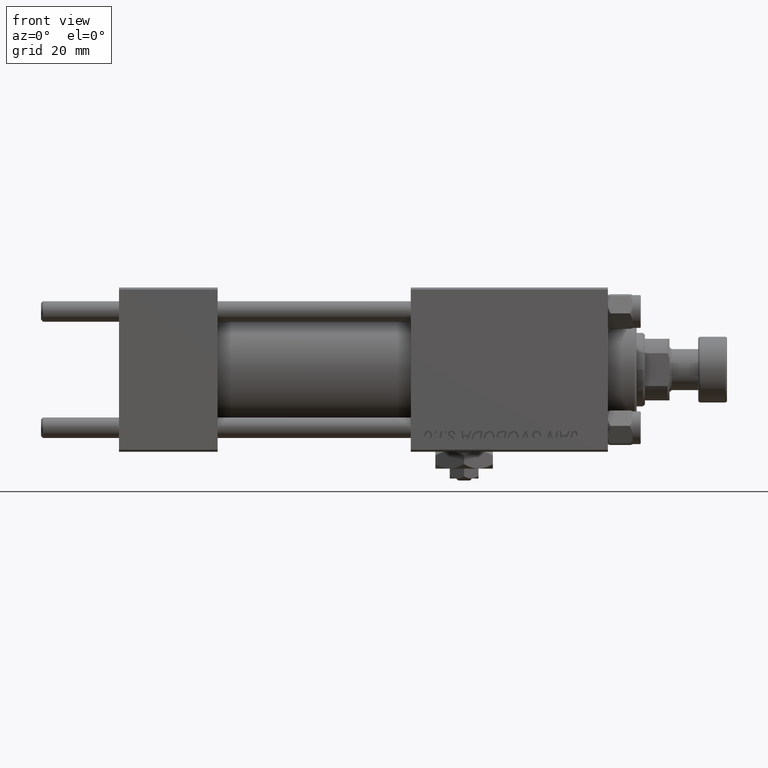
[diagram: clean part render]
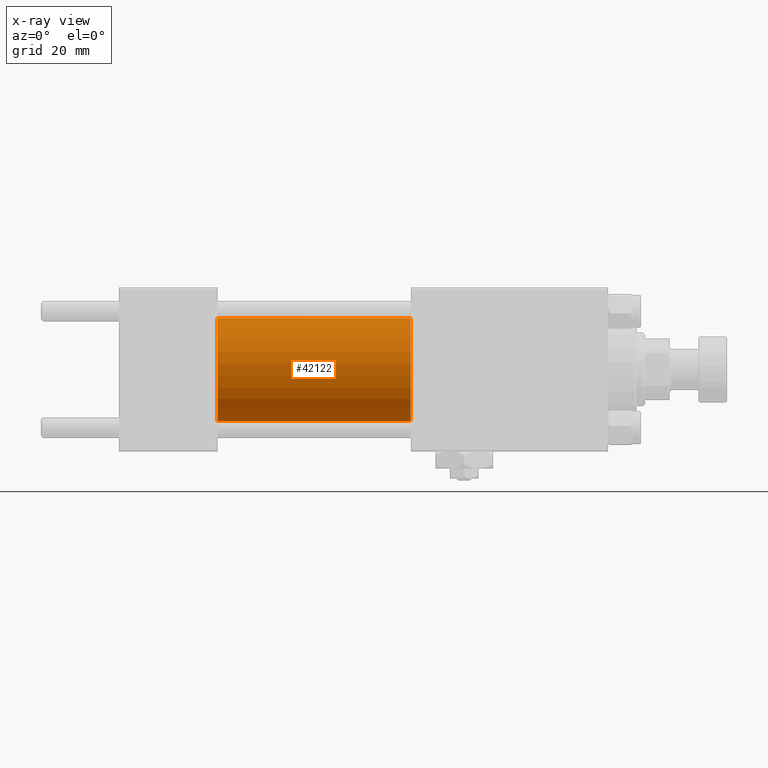
[diagram: x-ray — body ghosted, one internal face saturated and labeled with its STEP entity id]
A machine part, front view, then the same camera in x-ray: the body is ghosted and one INTERNAL B-rep face — a face not visible from any outside direction — is saturated and labeled: STEP entity #42122.
In plain terms, the highlighted cylindrical surface (partial cylindrical patch) has radius 12.5 mm, axis along (-1, -0, -0).
Its self-contained STEP definition (entity closure, byte-faithful):
#26 = CARTESIAN_POINT ( 'NONE',  ( 24.00000000000000000, 0.000000000000000000, 12.49999999999999645 ) ) ;
#1106 = DIRECTION ( 'NONE',  ( 1.000000000000000000, 0.000000000000000000, 0.000000000000000000 ) ) ;
#1792 = VECTOR ( 'NONE', #37210, 1000.000000000000000 ) ;
#2513 = EDGE_CURVE ( 'NONE', #13904, #45645, #7411, .T. ) ;
#5049 = CARTESIAN_POINT ( 'NONE',  ( 71.00000000000001421, 0.000000000000000000, 0.000000000000000000 ) ) ;
#7411 = CIRCLE ( 'NONE', #36787, 12.49999999999999645 ) ;
#10118 = EDGE_CURVE ( 'NONE', #13904, #35926, #48041, .T. ) ;
#13031 = EDGE_CURVE ( 'NONE', #35926, #36608, #48209, .T. ) ;
#13904 = VERTEX_POINT ( 'NONE', #26538 ) ;
#14065 = DIRECTION ( 'NONE',  ( -1.000000000000000000, -0.000000000000000000, -0.000000000000000000 ) ) ;
#16433 = VECTOR ( 'NONE', #14065, 1000.000000000000000 ) ;
#16663 = FACE_OUTER_BOUND ( 'NONE', #22492, .T. ) ;
#17112 = DIRECTION ( 'NONE',  ( 0.000000000000000000, 0.000000000000000000, -1.000000000000000000 ) ) ;
#22490 = CARTESIAN_POINT ( 'NONE',  ( 71.00000000000001421, 1.530808498934191127E-15, -12.49999999999999645 ) ) ;
#22492 = EDGE_LOOP ( 'NONE', ( #36535, #41019, #49497, #33346 ) ) ;
#22818 = EDGE_CURVE ( 'NONE', #45645, #36608, #50153, .T. ) ;
#26015 = DIRECTION ( 'NONE',  ( 0.000000000000000000, 0.000000000000000000, -1.000000000000000000 ) ) ;
#26538 = CARTESIAN_POINT ( 'NONE',  ( 71.00000000000001421, 0.000000000000000000, 12.49999999999999645 ) ) ;
#32984 = CARTESIAN_POINT ( 'NONE',  ( 71.00000000000001421, 0.000000000000000000, 0.000000000000000000 ) ) ;
#33230 = CYLINDRICAL_SURFACE ( 'NONE', #45376, 12.49999999999999645 ) ;
#33346 = ORIENTED_EDGE ( 'NONE', *, *, #10118, .F. ) ;
#34683 = DIRECTION ( 'NONE',  ( 1.000000000000000000, 0.000000000000000000, 0.000000000000000000 ) ) ;
#34735 = AXIS2_PLACEMENT_3D ( 'NONE', #42577, #34683, #26015 ) ;
#34775 = CARTESIAN_POINT ( 'NONE',  ( 71.00000000000001421, 1.530808498934191127E-15, -12.49999999999999645 ) ) ;
#35926 = VERTEX_POINT ( 'NONE', #26 ) ;
#36181 = CARTESIAN_POINT ( 'NONE',  ( 71.00000000000001421, 0.000000000000000000, 12.49999999999999645 ) ) ;
#36535 = ORIENTED_EDGE ( 'NONE', *, *, #2513, .T. ) ;
#36608 = VERTEX_POINT ( 'NONE', #42765 ) ;
#36787 = AXIS2_PLACEMENT_3D ( 'NONE', #5049, #1106, #17112 ) ;
#37210 = DIRECTION ( 'NONE',  ( -1.000000000000000000, -0.000000000000000000, -0.000000000000000000 ) ) ;
#38401 = DIRECTION ( 'NONE',  ( 0.000000000000000000, 0.000000000000000000, 1.000000000000000000 ) ) ;
#40882 = DIRECTION ( 'NONE',  ( -1.000000000000000000, -0.000000000000000000, -0.000000000000000000 ) ) ;
#41019 = ORIENTED_EDGE ( 'NONE', *, *, #22818, .T. ) ;
#42122 = ADVANCED_FACE ( 'NONE', ( #16663 ), #33230, .F. ) ;
#42577 = CARTESIAN_POINT ( 'NONE',  ( 24.00000000000000000, 0.000000000000000000, 0.000000000000000000 ) ) ;
#42765 = CARTESIAN_POINT ( 'NONE',  ( 24.00000000000000000, 1.530808498934191127E-15, -12.49999999999999645 ) ) ;
#45376 = AXIS2_PLACEMENT_3D ( 'NONE', #32984, #40882, #38401 ) ;
#45645 = VERTEX_POINT ( 'NONE', #34775 ) ;
#48041 = LINE ( 'NONE', #36181, #1792 ) ;
#48209 = CIRCLE ( 'NONE', #34735, 12.49999999999999645 ) ;
#49497 = ORIENTED_EDGE ( 'NONE', *, *, #13031, .F. ) ;
#50153 = LINE ( 'NONE', #22490, #16433 ) ;